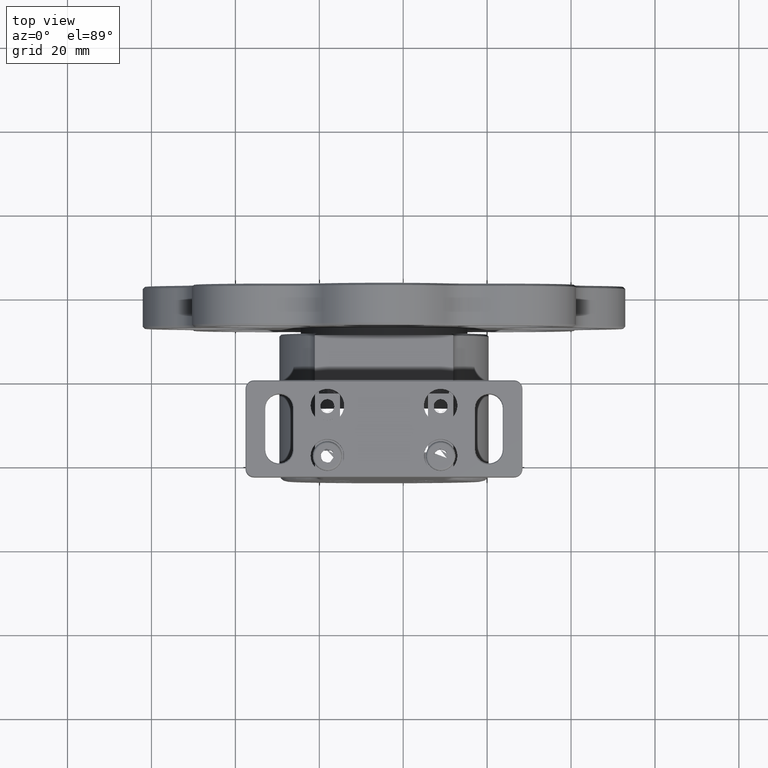
[diagram: clean part render]
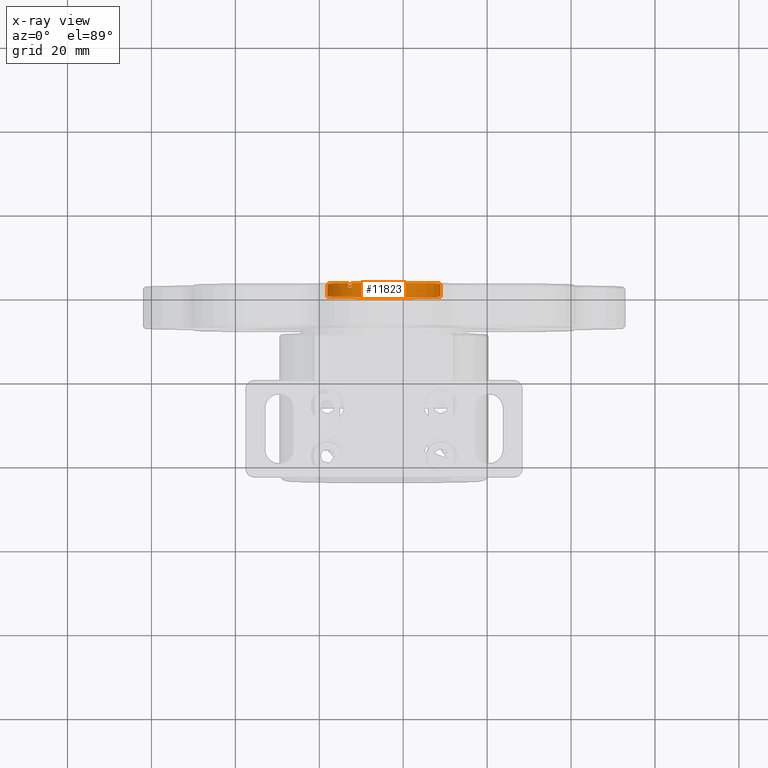
[diagram: x-ray — body ghosted, one internal face saturated and labeled with its STEP entity id]
A machine part, top view, then the same camera in x-ray: the body is ghosted and one INTERNAL B-rep face — a face not visible from any outside direction — is saturated and labeled: STEP entity #11823.
In plain terms, the highlighted cylindrical surface (bore or boss wall) has radius 13.5 mm, axis along (0, -1, -0).
Its self-contained STEP definition (entity closure, byte-faithful):
#61 = CARTESIAN_POINT ( 'NONE',  ( -32.30133603288459909, 42.07911804988290072, 121.0727639019856809 ) ) ;
#729 = DIRECTION ( 'NONE',  ( 1.000000000000000000, 0.000000000000000000, 0.000000000000000000 ) ) ;
#1052 = EDGE_LOOP ( 'NONE', ( #17460, #7354, #5057, #16176, #15152, #17633, #15756, #16420 ) ) ;
#1574 = DIRECTION ( 'NONE',  ( 3.488278094132891133E-29, -1.000000000000000000, -4.475490601801672483E-45 ) ) ;
#1653 = CARTESIAN_POINT ( 'NONE',  ( -33.09979023727815672, 42.07911804988290072, 120.4707083534802194 ) ) ;
#1978 = CIRCLE ( 'NONE', #10779, 13.50000000000006395 ) ;
#2189 = AXIS2_PLACEMENT_3D ( 'NONE', #6682, #12588, #11109 ) ;
#2299 = CARTESIAN_POINT ( 'NONE',  ( -24.57838973170629160, 42.07911804988289362, 109.9999999999999574 ) ) ;
#2423 = EDGE_CURVE ( 'NONE', #9022, #3051, #1978, .T. ) ;
#2979 = EDGE_CURVE ( 'NONE', #19301, #3679, #6036, .T. ) ;
#3051 = VERTEX_POINT ( 'NONE', #12503 ) ;
#3115 = VECTOR ( 'NONE', #4463, 1000.000000000000000 ) ;
#3184 = VERTEX_POINT ( 'NONE', #17143 ) ;
#3623 = CARTESIAN_POINT ( 'NONE',  ( -16.85544343052802674, 42.07911804988290072, 98.92723609801420537 ) ) ;
#3679 = VERTEX_POINT ( 'NONE', #6231 ) ;
#3847 = DIRECTION ( 'NONE',  ( -3.488278094132891133E-29, 1.000000000000000000, 4.475490601801672483E-45 ) ) ;
#4387 = EDGE_CURVE ( 'NONE', #5637, #6026, #16678, .T. ) ;
#4463 = DIRECTION ( 'NONE',  ( -3.488278094132891133E-29, 1.000000000000000000, 4.475490601801672483E-45 ) ) ;
#4551 = DIRECTION ( 'NONE',  ( 3.488278094132891133E-29, -1.000000000000000000, -4.475490601801672483E-45 ) ) ;
#5057 = ORIENTED_EDGE ( 'NONE', *, *, #12712, .F. ) ;
#5361 = CARTESIAN_POINT ( 'NONE',  ( -24.57838973170629160, 42.07911804988290072, 109.9999999999999574 ) ) ;
#5383 = CARTESIAN_POINT ( 'NONE',  ( -32.30133603288459909, 42.07911804988290072, 121.0727639019856809 ) ) ;
#5448 = DIRECTION ( 'NONE',  ( 1.000000000000000000, 0.000000000000000000, 0.000000000000000000 ) ) ;
#5580 = EDGE_CURVE ( 'NONE', #14595, #3184, #13196, .T. ) ;
#5637 = VERTEX_POINT ( 'NONE', #3623 ) ;
#5841 = AXIS2_PLACEMENT_3D ( 'NONE', #8232, #8142, #14253 ) ;
#6026 = VERTEX_POINT ( 'NONE', #1653 ) ;
#6036 = CIRCLE ( 'NONE', #9477, 13.50000000000006395 ) ;
#6231 = CARTESIAN_POINT ( 'NONE',  ( -33.09979023727815672, 41.07911804988290072, 120.4707083534802194 ) ) ;
#6586 = FACE_OUTER_BOUND ( 'NONE', #15989, .T. ) ;
#6682 = CARTESIAN_POINT ( 'NONE',  ( -24.57838973170629160, 41.07911804988290072, 109.9999999999999574 ) ) ;
#7261 = VERTEX_POINT ( 'NONE', #16236 ) ;
#7354 = ORIENTED_EDGE ( 'NONE', *, *, #5580, .F. ) ;
#7688 = VECTOR ( 'NONE', #4551, 1000.000000000000000 ) ;
#7976 = DIRECTION ( 'NONE',  ( -3.488278094132891133E-29, 1.000000000000000000, 4.475490601801672483E-45 ) ) ;
#8142 = DIRECTION ( 'NONE',  ( 3.488278094132891133E-29, -1.000000000000000000, -4.475490601801672483E-45 ) ) ;
#8232 = CARTESIAN_POINT ( 'NONE',  ( -24.57838973170629160, 42.07911804988290072, 109.9999999999999574 ) ) ;
#8712 = DIRECTION ( 'NONE',  ( 3.488278094132891133E-29, -1.000000000000000000, -4.475490601801672483E-45 ) ) ;
#9022 = VERTEX_POINT ( 'NONE', #61 ) ;
#9044 = DIRECTION ( 'NONE',  ( 1.000000000000000000, 0.000000000000000000, 0.000000000000000000 ) ) ;
#9447 = CARTESIAN_POINT ( 'NONE',  ( -24.57838973170629160, 39.07911804988290072, 109.9999999999999574 ) ) ;
#9477 = AXIS2_PLACEMENT_3D ( 'NONE', #10632, #1574, #9044 ) ;
#10065 = DIRECTION ( 'NONE',  ( -3.488278094132891133E-29, 1.000000000000000000, 4.475490601801672483E-45 ) ) ;
#10318 = EDGE_CURVE ( 'NONE', #7261, #7261, #14626, .T. ) ;
#10386 = AXIS2_PLACEMENT_3D ( 'NONE', #2299, #10065, #5448 ) ;
#10632 = CARTESIAN_POINT ( 'NONE',  ( -24.57838973170629160, 41.07911804988290072, 109.9999999999999574 ) ) ;
#10779 = AXIS2_PLACEMENT_3D ( 'NONE', #5361, #14214, #729 ) ;
#11109 = DIRECTION ( 'NONE',  ( 1.000000000000000000, 0.000000000000000000, 0.000000000000000000 ) ) ;
#11388 = CYLINDRICAL_SURFACE ( 'NONE', #5841, 13.50000000000006395 ) ;
#11647 = CARTESIAN_POINT ( 'NONE',  ( -16.85544343052802674, 42.07911804988290072, 98.92723609801420537 ) ) ;
#11722 = CARTESIAN_POINT ( 'NONE',  ( -16.05698922613443713, 42.07911804988290072, 99.52929164651969529 ) ) ;
#11823 = ADVANCED_FACE ( 'NONE', ( #14451, #6586 ), #11388, .F. ) ;
#11839 = VECTOR ( 'NONE', #3847, 1000.000000000000000 ) ;
#11948 = LINE ( 'NONE', #13524, #3115 ) ;
#12503 = CARTESIAN_POINT ( 'NONE',  ( -16.05698922613443358, 42.07911804988290072, 99.52929164651969529 ) ) ;
#12588 = DIRECTION ( 'NONE',  ( 3.488278094132891133E-29, -1.000000000000000000, -4.475490601801672483E-45 ) ) ;
#12712 = EDGE_CURVE ( 'NONE', #5637, #14595, #19242, .T. ) ;
#13196 = CIRCLE ( 'NONE', #2189, 13.50000000000006395 ) ;
#13201 = LINE ( 'NONE', #11722, #11839 ) ;
#13524 = CARTESIAN_POINT ( 'NONE',  ( -33.09979023727815672, 42.07911804988290072, 120.4707083534802194 ) ) ;
#14192 = EDGE_CURVE ( 'NONE', #3184, #3051, #13201, .T. ) ;
#14214 = DIRECTION ( 'NONE',  ( -3.488278094132891133E-29, 1.000000000000000000, 4.475490601801672483E-45 ) ) ;
#14253 = DIRECTION ( 'NONE',  ( 1.000000000000000000, 0.000000000000000000, 0.000000000000000000 ) ) ;
#14451 = FACE_OUTER_BOUND ( 'NONE', #1052, .T. ) ;
#14595 = VERTEX_POINT ( 'NONE', #15133 ) ;
#14626 = CIRCLE ( 'NONE', #16814, 13.50000000000006395 ) ;
#14741 = LINE ( 'NONE', #5383, #17248 ) ;
#14890 = CARTESIAN_POINT ( 'NONE',  ( -32.30133603288458488, 41.07911804988290072, 121.0727639019856809 ) ) ;
#15133 = CARTESIAN_POINT ( 'NONE',  ( -16.85544343052802319, 41.07911804988290072, 98.92723609801420537 ) ) ;
#15152 = ORIENTED_EDGE ( 'NONE', *, *, #17873, .F. ) ;
#15756 = ORIENTED_EDGE ( 'NONE', *, *, #16268, .F. ) ;
#15989 = EDGE_LOOP ( 'NONE', ( #18289 ) ) ;
#16176 = ORIENTED_EDGE ( 'NONE', *, *, #4387, .T. ) ;
#16236 = CARTESIAN_POINT ( 'NONE',  ( -11.07838973170622765, 39.07911804988290072, 109.9999999999999574 ) ) ;
#16268 = EDGE_CURVE ( 'NONE', #9022, #19301, #14741, .T. ) ;
#16420 = ORIENTED_EDGE ( 'NONE', *, *, #2423, .T. ) ;
#16678 = CIRCLE ( 'NONE', #10386, 13.50000000000006395 ) ;
#16814 = AXIS2_PLACEMENT_3D ( 'NONE', #9447, #7976, #18627 ) ;
#17143 = CARTESIAN_POINT ( 'NONE',  ( -16.05698922613442647, 41.07911804988290072, 99.52929164651969529 ) ) ;
#17248 = VECTOR ( 'NONE', #8712, 1000.000000000000000 ) ;
#17460 = ORIENTED_EDGE ( 'NONE', *, *, #14192, .F. ) ;
#17633 = ORIENTED_EDGE ( 'NONE', *, *, #2979, .F. ) ;
#17873 = EDGE_CURVE ( 'NONE', #3679, #6026, #11948, .T. ) ;
#18289 = ORIENTED_EDGE ( 'NONE', *, *, #10318, .F. ) ;
#18627 = DIRECTION ( 'NONE',  ( 1.000000000000000000, 0.000000000000000000, 0.000000000000000000 ) ) ;
#19242 = LINE ( 'NONE', #11647, #7688 ) ;
#19301 = VERTEX_POINT ( 'NONE', #14890 ) ;